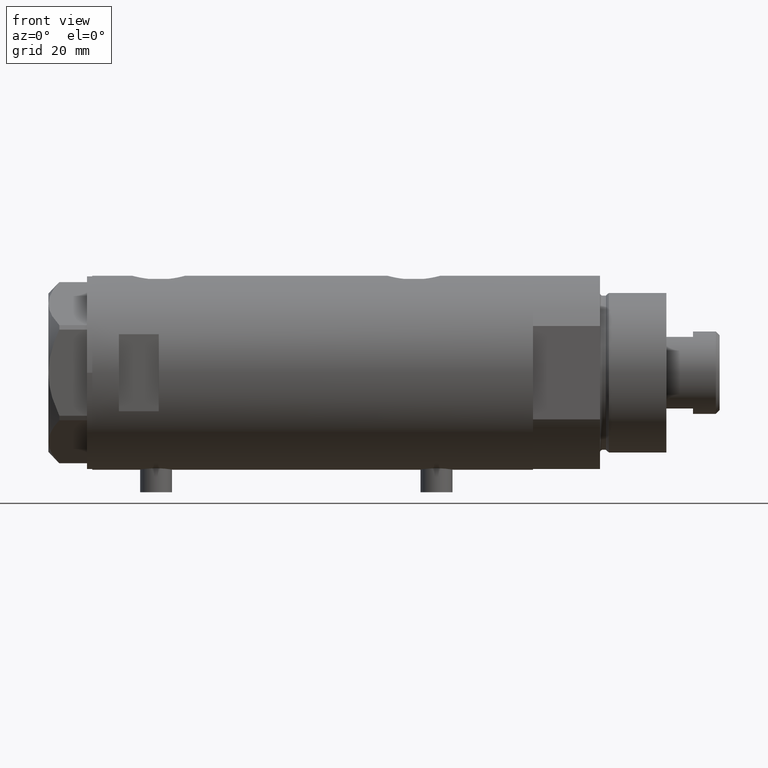
[diagram: clean part render]
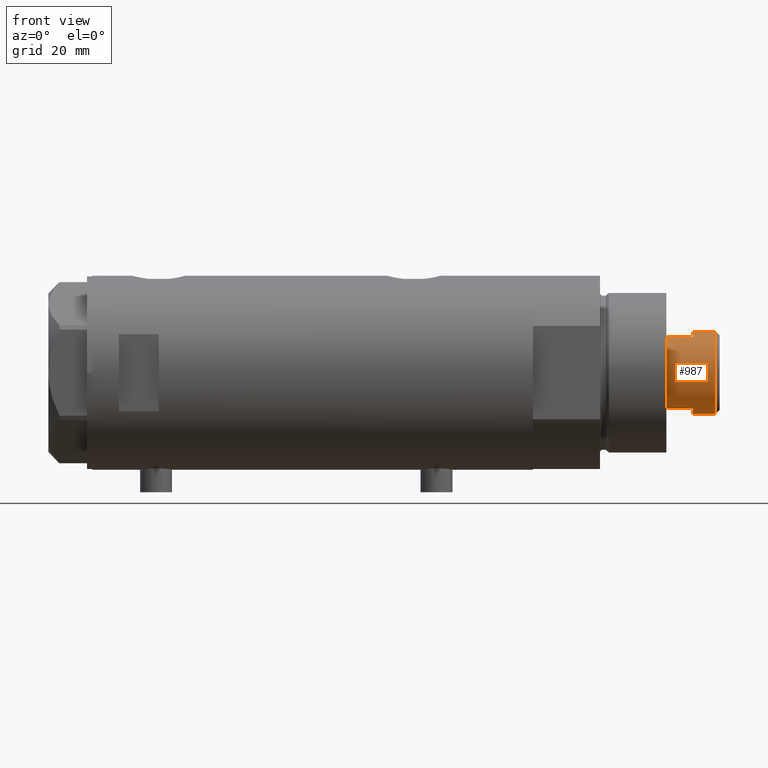
[diagram: same view with one face highlighted and labeled with its STEP entity id]
A machine part, front view. The second image highlights one B-rep face of the part: STEP entity #987.
In plain terms, the highlighted cylindrical surface (partial cylindrical patch) has radius 15.5 mm, axis along (-1, -0, 0).
Its self-contained STEP definition (entity closure, byte-faithful):
#6 = CARTESIAN_POINT ( 'NONE',  ( 15.50000000000000178, 1.898202538678397557E-15, 200.0000000000000000 ) ) ;
#316 = CARTESIAN_POINT ( 'NONE',  ( 0.000000000000000000, 0.000000000000000000, 208.5999999999999659 ) ) ;
#325 = VERTEX_POINT ( 'NONE', #2845 ) ;
#428 = CARTESIAN_POINT ( 'NONE',  ( 15.49999999999999822, 1.898202538678397163E-15, 200.0000000000000000 ) ) ;
#498 = CYLINDRICAL_SURFACE ( 'NONE', #1258, 15.49999999999999822 ) ;
#518 = CARTESIAN_POINT ( 'NONE',  ( 0.000000000000000000, 0.000000000000000000, 200.0000000000000000 ) ) ;
#726 = CARTESIAN_POINT ( 'NONE',  ( 13.48630416385452691, -7.639999999999914415, 190.0000000000000000 ) ) ;
#759 = EDGE_CURVE ( 'NONE', #2313, #1517, #3969, .T. ) ;
#776 = ORIENTED_EDGE ( 'NONE', *, *, #823, .T. ) ;
#823 = EDGE_CURVE ( 'NONE', #3828, #1277, #3711, .T. ) ;
#850 = EDGE_CURVE ( 'NONE', #325, #2313, #2487, .T. ) ;
#877 = DIRECTION ( 'NONE',  ( 1.000000000000000000, 0.000000000000000000, 0.000000000000000000 ) ) ;
#974 = VECTOR ( 'NONE', #3625, 1000.000000000000000 ) ;
#976 = DIRECTION ( 'NONE',  ( 0.000000000000000000, 0.000000000000000000, 1.000000000000000000 ) ) ;
#987 = ADVANCED_FACE ( 'NONE', ( #4302 ), #498, .T. ) ;
#1059 = CIRCLE ( 'NONE', #1419, 15.50000000000000000 ) ;
#1132 = VERTEX_POINT ( 'NONE', #1621 ) ;
#1158 = CARTESIAN_POINT ( 'NONE',  ( -15.50000000000000178, 0.000000000000000000, 200.0000000000000000 ) ) ;
#1198 = DIRECTION ( 'NONE',  ( -1.000000000000000000, 0.000000000000000000, 0.000000000000000000 ) ) ;
#1242 = EDGE_CURVE ( 'NONE', #325, #2512, #1801, .T. ) ;
#1258 = AXIS2_PLACEMENT_3D ( 'NONE', #3932, #3299, #1198 ) ;
#1277 = VERTEX_POINT ( 'NONE', #726 ) ;
#1281 = AXIS2_PLACEMENT_3D ( 'NONE', #518, #2990, #4368 ) ;
#1325 = ORIENTED_EDGE ( 'NONE', *, *, #1242, .F. ) ;
#1419 = AXIS2_PLACEMENT_3D ( 'NONE', #2126, #2857, #3851 ) ;
#1503 = EDGE_CURVE ( 'NONE', #1132, #3828, #2506, .T. ) ;
#1517 = VERTEX_POINT ( 'NONE', #1158 ) ;
#1581 = CARTESIAN_POINT ( 'NONE',  ( -15.49999999999999822, 0.000000000000000000, 208.5999999999999659 ) ) ;
#1621 = CARTESIAN_POINT ( 'NONE',  ( -13.48630416385452335, -7.640000000000004121, 200.0000000000000000 ) ) ;
#1696 = DIRECTION ( 'NONE',  ( 1.000000000000000000, 0.000000000000000000, 0.000000000000000000 ) ) ;
#1776 = VECTOR ( 'NONE', #3559, 1000.000000000000000 ) ;
#1801 = LINE ( 'NONE', #428, #2707 ) ;
#1806 = EDGE_LOOP ( 'NONE', ( #1325, #4028, #3608, #2982, #3010, #776, #4236, #2250 ) ) ;
#1870 = DIRECTION ( 'NONE',  ( -0.000000000000000000, -0.000000000000000000, -1.000000000000000000 ) ) ;
#1986 = CARTESIAN_POINT ( 'NONE',  ( 0.000000000000000000, 0.000000000000000000, 190.0000000000000000 ) ) ;
#2034 = DIRECTION ( 'NONE',  ( 0.000000000000000000, 0.000000000000000000, -1.000000000000000000 ) ) ;
#2126 = CARTESIAN_POINT ( 'NONE',  ( 0.000000000000000000, 0.000000000000000000, 200.0000000000000000 ) ) ;
#2195 = VECTOR ( 'NONE', #1870, 1000.000000000000000 ) ;
#2250 = ORIENTED_EDGE ( 'NONE', *, *, #2632, .T. ) ;
#2313 = VERTEX_POINT ( 'NONE', #1581 ) ;
#2466 = LINE ( 'NONE', #2514, #1776 ) ;
#2487 = CIRCLE ( 'NONE', #3574, 15.49999999999999822 ) ;
#2506 = LINE ( 'NONE', #3567, #2195 ) ;
#2512 = VERTEX_POINT ( 'NONE', #6 ) ;
#2514 = CARTESIAN_POINT ( 'NONE',  ( 13.48630416385453046, -7.639999999999995239, 200.0000000000000000 ) ) ;
#2632 = EDGE_CURVE ( 'NONE', #3644, #2512, #1059, .T. ) ;
#2707 = VECTOR ( 'NONE', #3190, 1000.000000000000000 ) ;
#2751 = EDGE_CURVE ( 'NONE', #3644, #1277, #2466, .T. ) ;
#2845 = CARTESIAN_POINT ( 'NONE',  ( 15.49999999999999822, 1.898202538678397163E-15, 208.5999999999999659 ) ) ;
#2857 = DIRECTION ( 'NONE',  ( 0.000000000000000000, 0.000000000000000000, 1.000000000000000000 ) ) ;
#2982 = ORIENTED_EDGE ( 'NONE', *, *, #3687, .T. ) ;
#2990 = DIRECTION ( 'NONE',  ( 0.000000000000000000, 0.000000000000000000, 1.000000000000000000 ) ) ;
#3010 = ORIENTED_EDGE ( 'NONE', *, *, #1503, .T. ) ;
#3107 = CARTESIAN_POINT ( 'NONE',  ( -15.49999999999999822, 0.000000000000000000, 200.0000000000000000 ) ) ;
#3190 = DIRECTION ( 'NONE',  ( -0.000000000000000000, -0.000000000000000000, -1.000000000000000000 ) ) ;
#3299 = DIRECTION ( 'NONE',  ( -0.000000000000000000, -0.000000000000000000, -1.000000000000000000 ) ) ;
#3468 = CARTESIAN_POINT ( 'NONE',  ( -13.48630416385452513, -7.639999999999921521, 190.0000000000000000 ) ) ;
#3559 = DIRECTION ( 'NONE',  ( -0.000000000000000000, -0.000000000000000000, -1.000000000000000000 ) ) ;
#3567 = CARTESIAN_POINT ( 'NONE',  ( -13.48630416385452691, -7.640000000000001457, 200.0000000000000000 ) ) ;
#3574 = AXIS2_PLACEMENT_3D ( 'NONE', #316, #2034, #1696 ) ;
#3608 = ORIENTED_EDGE ( 'NONE', *, *, #759, .T. ) ;
#3625 = DIRECTION ( 'NONE',  ( -0.000000000000000000, -0.000000000000000000, -1.000000000000000000 ) ) ;
#3644 = VERTEX_POINT ( 'NONE', #3885 ) ;
#3687 = EDGE_CURVE ( 'NONE', #1517, #1132, #3745, .T. ) ;
#3711 = CIRCLE ( 'NONE', #3998, 15.49999999999999822 ) ;
#3745 = CIRCLE ( 'NONE', #1281, 15.50000000000000000 ) ;
#3828 = VERTEX_POINT ( 'NONE', #3468 ) ;
#3851 = DIRECTION ( 'NONE',  ( 1.000000000000000000, 0.000000000000000000, 0.000000000000000000 ) ) ;
#3885 = CARTESIAN_POINT ( 'NONE',  ( 13.48630416385453046, -7.639999999999995239, 200.0000000000000000 ) ) ;
#3932 = CARTESIAN_POINT ( 'NONE',  ( 0.000000000000000000, 0.000000000000000000, 200.0000000000000000 ) ) ;
#3969 = LINE ( 'NONE', #3107, #974 ) ;
#3998 = AXIS2_PLACEMENT_3D ( 'NONE', #1986, #976, #877 ) ;
#4028 = ORIENTED_EDGE ( 'NONE', *, *, #850, .T. ) ;
#4236 = ORIENTED_EDGE ( 'NONE', *, *, #2751, .F. ) ;
#4302 = FACE_OUTER_BOUND ( 'NONE', #1806, .T. ) ;
#4368 = DIRECTION ( 'NONE',  ( 1.000000000000000000, 0.000000000000000000, 0.000000000000000000 ) ) ;